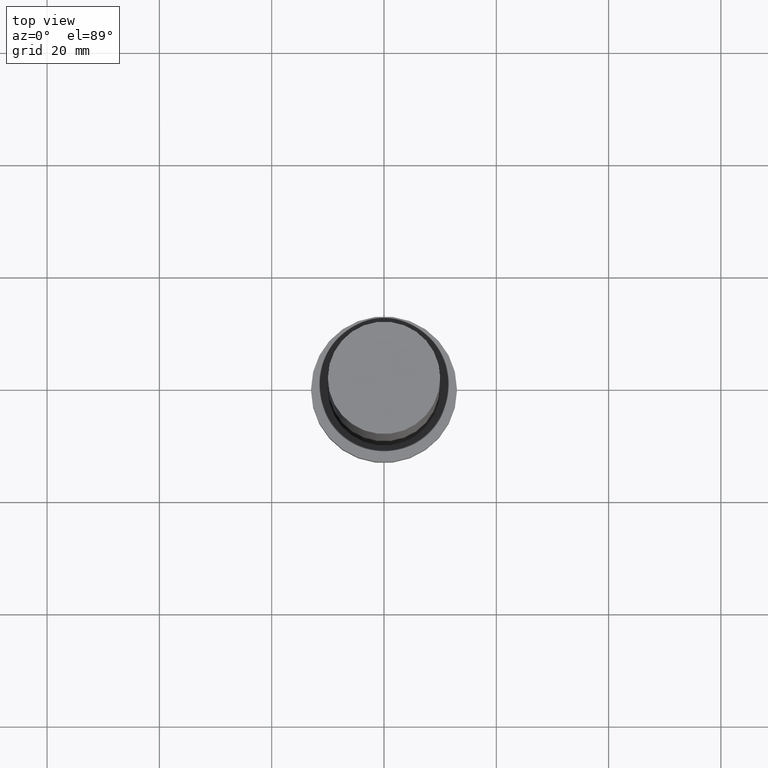
[diagram: clean part render]
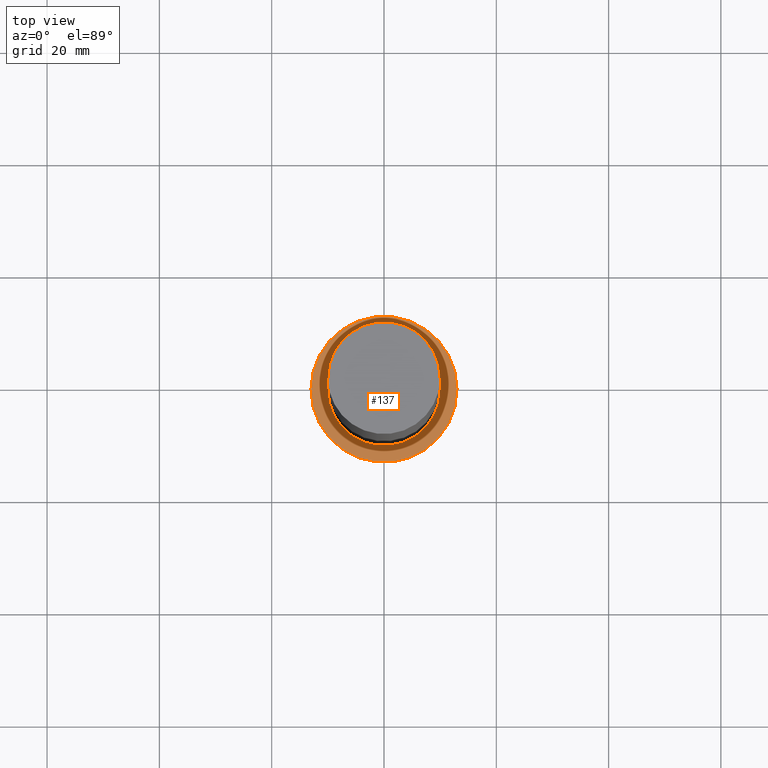
[diagram: same view with one face highlighted and labeled with its STEP entity id]
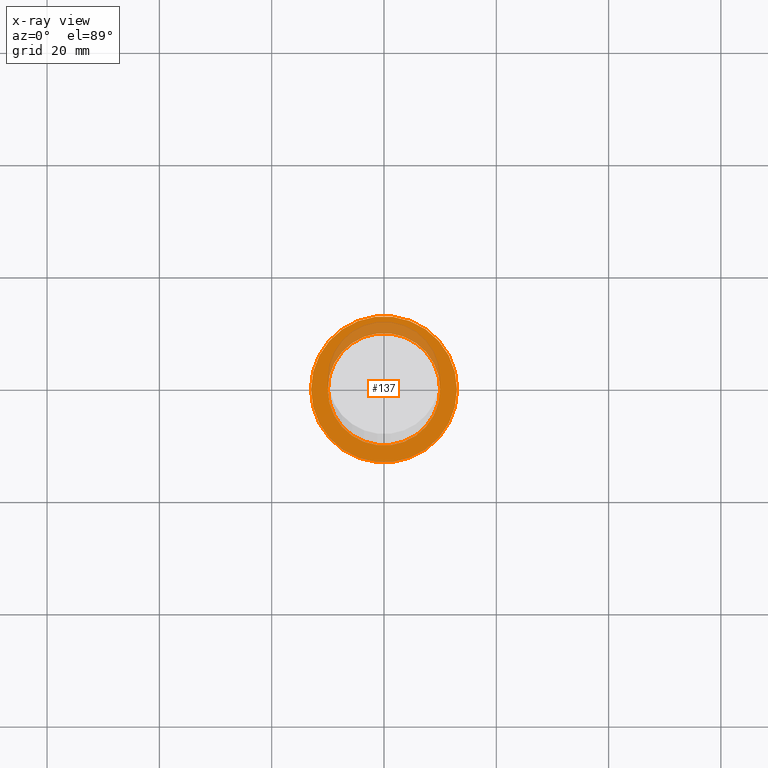
[diagram: x-ray of the same camera — body ghosted, the highlighted face saturated]
A machine part, top view. The second image highlights one B-rep face of the part: STEP entity #137.
The next image is the same camera in x-ray: the body ghosted, the highlighted face saturated — about 19% of this face is hidden behind the body in this view.
In plain terms, the highlighted planar face has unit normal (0, 0, 1).
Its self-contained STEP definition (entity closure, byte-faithful):
#8 = DIRECTION ( 'NONE',  ( 1.000000000000000000, 0.000000000000000000, -0.000000000000000000 ) ) ;
#15 = AXIS2_PLACEMENT_3D ( 'NONE', #52, #247, #51 ) ;
#16 = EDGE_CURVE ( 'NONE', #43, #254, #49, .T. ) ;
#25 = DIRECTION ( 'NONE',  ( 0.000000000000000000, 0.000000000000000000, 1.000000000000000000 ) ) ;
#26 = AXIS2_PLACEMENT_3D ( 'NONE', #30, #72, #53 ) ;
#28 = DIRECTION ( 'NONE',  ( 0.000000000000000000, 0.000000000000000000, 1.000000000000000000 ) ) ;
#30 = CARTESIAN_POINT ( 'NONE',  ( 0.000000000000000000, 0.000000000000000000, 8.000000000000000000 ) ) ;
#40 = EDGE_LOOP ( 'NONE', ( #219, #79 ) ) ;
#43 = VERTEX_POINT ( 'NONE', #217 ) ;
#47 = CARTESIAN_POINT ( 'NONE',  ( 13.00000000000000178, 1.592040838891559293E-15, 8.000000000000000000 ) ) ;
#49 = CIRCLE ( 'NONE', #227, 10.00000000000000000 ) ;
#51 = DIRECTION ( 'NONE',  ( 1.000000000000000000, 0.000000000000000000, 0.000000000000000000 ) ) ;
#52 = CARTESIAN_POINT ( 'NONE',  ( 0.000000000000000000, 0.000000000000000000, 8.000000000000000000 ) ) ;
#53 = DIRECTION ( 'NONE',  ( 1.000000000000000000, 0.000000000000000000, 0.000000000000000000 ) ) ;
#61 = CARTESIAN_POINT ( 'NONE',  ( 0.000000000000000000, 0.000000000000000000, 8.000000000000000000 ) ) ;
#72 = DIRECTION ( 'NONE',  ( 0.000000000000000000, 0.000000000000000000, 1.000000000000000000 ) ) ;
#79 = ORIENTED_EDGE ( 'NONE', *, *, #16, .F. ) ;
#91 = AXIS2_PLACEMENT_3D ( 'NONE', #149, #28, #104 ) ;
#104 = DIRECTION ( 'NONE',  ( 1.000000000000000000, 0.000000000000000000, 0.000000000000000000 ) ) ;
#136 = CIRCLE ( 'NONE', #26, 13.00000000000000178 ) ;
#137 = ADVANCED_FACE ( 'NONE', ( #244, #223 ), #155, .T. ) ;
#141 = ORIENTED_EDGE ( 'NONE', *, *, #193, .T. ) ;
#147 = ORIENTED_EDGE ( 'NONE', *, *, #179, .T. ) ;
#149 = CARTESIAN_POINT ( 'NONE',  ( 0.000000000000000000, 0.000000000000000000, 8.000000000000000000 ) ) ;
#154 = DIRECTION ( 'NONE',  ( 0.000000000000000000, 0.000000000000000000, 1.000000000000000000 ) ) ;
#155 = PLANE ( 'NONE',  #208 ) ;
#161 = DIRECTION ( 'NONE',  ( 1.000000000000000000, 0.000000000000000000, 0.000000000000000000 ) ) ;
#164 = VERTEX_POINT ( 'NONE', #47 ) ;
#171 = CARTESIAN_POINT ( 'NONE',  ( -13.00000000000000178, 0.000000000000000000, 8.000000000000000000 ) ) ;
#173 = CARTESIAN_POINT ( 'NONE',  ( 0.000000000000000000, 0.000000000000000000, 8.000000000000000000 ) ) ;
#177 = CIRCLE ( 'NONE', #91, 10.00000000000000000 ) ;
#179 = EDGE_CURVE ( 'NONE', #220, #164, #248, .T. ) ;
#193 = EDGE_CURVE ( 'NONE', #164, #220, #136, .T. ) ;
#208 = AXIS2_PLACEMENT_3D ( 'NONE', #173, #154, #8 ) ;
#213 = EDGE_LOOP ( 'NONE', ( #147, #141 ) ) ;
#217 = CARTESIAN_POINT ( 'NONE',  ( 10.00000000000000000, 1.224646799147353256E-15, 8.000000000000000000 ) ) ;
#219 = ORIENTED_EDGE ( 'NONE', *, *, #240, .F. ) ;
#220 = VERTEX_POINT ( 'NONE', #171 ) ;
#223 = FACE_OUTER_BOUND ( 'NONE', #213, .T. ) ;
#227 = AXIS2_PLACEMENT_3D ( 'NONE', #61, #25, #161 ) ;
#240 = EDGE_CURVE ( 'NONE', #254, #43, #177, .T. ) ;
#242 = CARTESIAN_POINT ( 'NONE',  ( -10.00000000000000000, 0.000000000000000000, 8.000000000000000000 ) ) ;
#244 = FACE_BOUND ( 'NONE', #40, .T. ) ;
#247 = DIRECTION ( 'NONE',  ( 0.000000000000000000, 0.000000000000000000, 1.000000000000000000 ) ) ;
#248 = CIRCLE ( 'NONE', #15, 13.00000000000000178 ) ;
#254 = VERTEX_POINT ( 'NONE', #242 ) ;